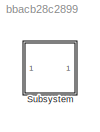
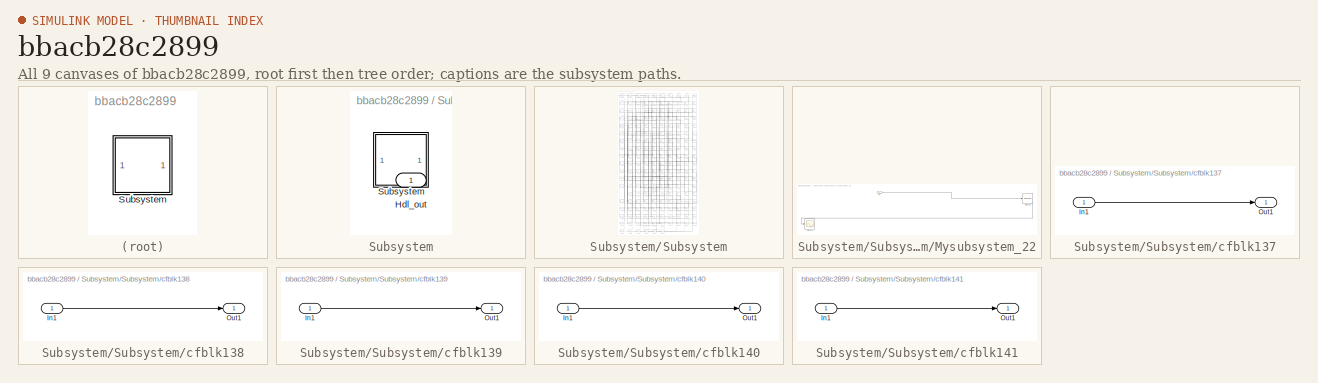
[diagram: thumbnail index - all 9 canvases of the model, root first then tree order]
MODEL slx_bbacb28c2899
KIND model
CONFIG AbsTol = auto
CONFIG EnableMultiTasking = off
CONFIG FixedStep = auto
CONFIG MaxStep = auto
CONFIG MinStep = auto
CONFIG RelTol = 1e-3
CONFIG SampleTimeConstraint = Unconstrained
CONFIG SolverName = VariableStepAuto
CONFIG StartTime = 0.0
CONFIG StopTime = 10.0
BLOCK [SubSystem] Subsystem
BLOCK [Outport] Subsystem/Hdl_out
  OutDataTypeStr = uint8
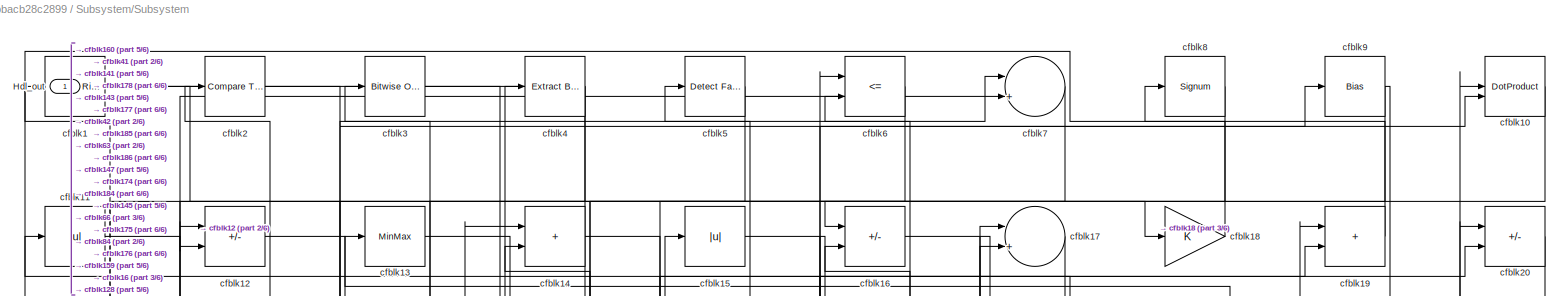
[diagram: Subsystem/Subsystem - part 1/6, full width, top band]
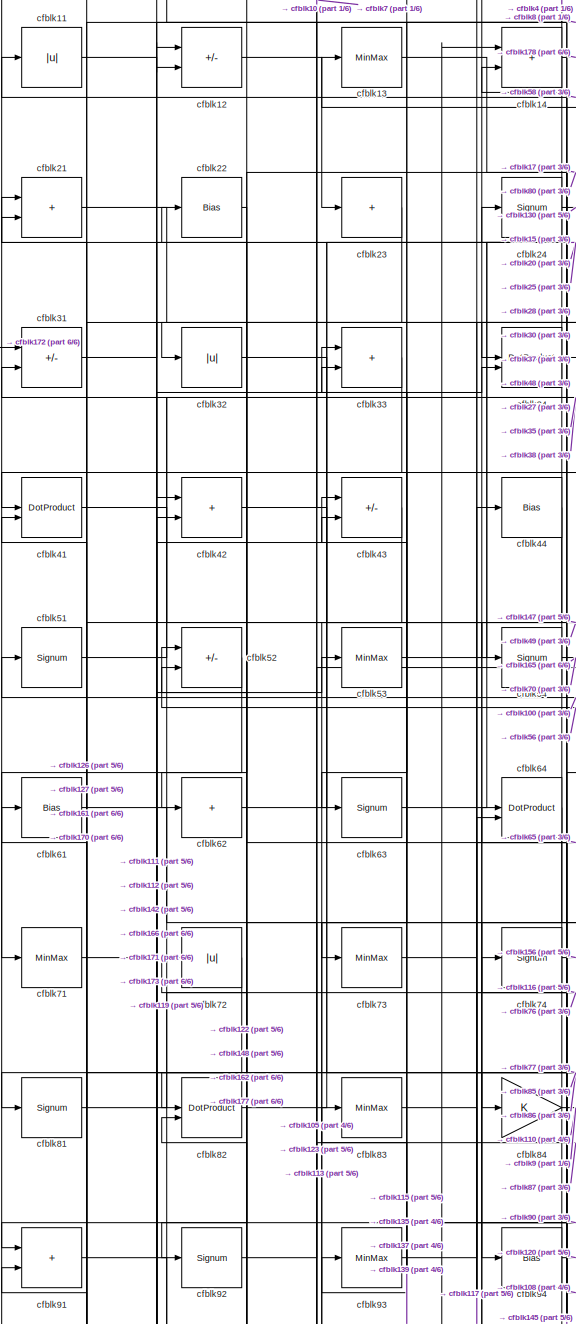
[diagram: Subsystem/Subsystem - part 2/6, top left region]
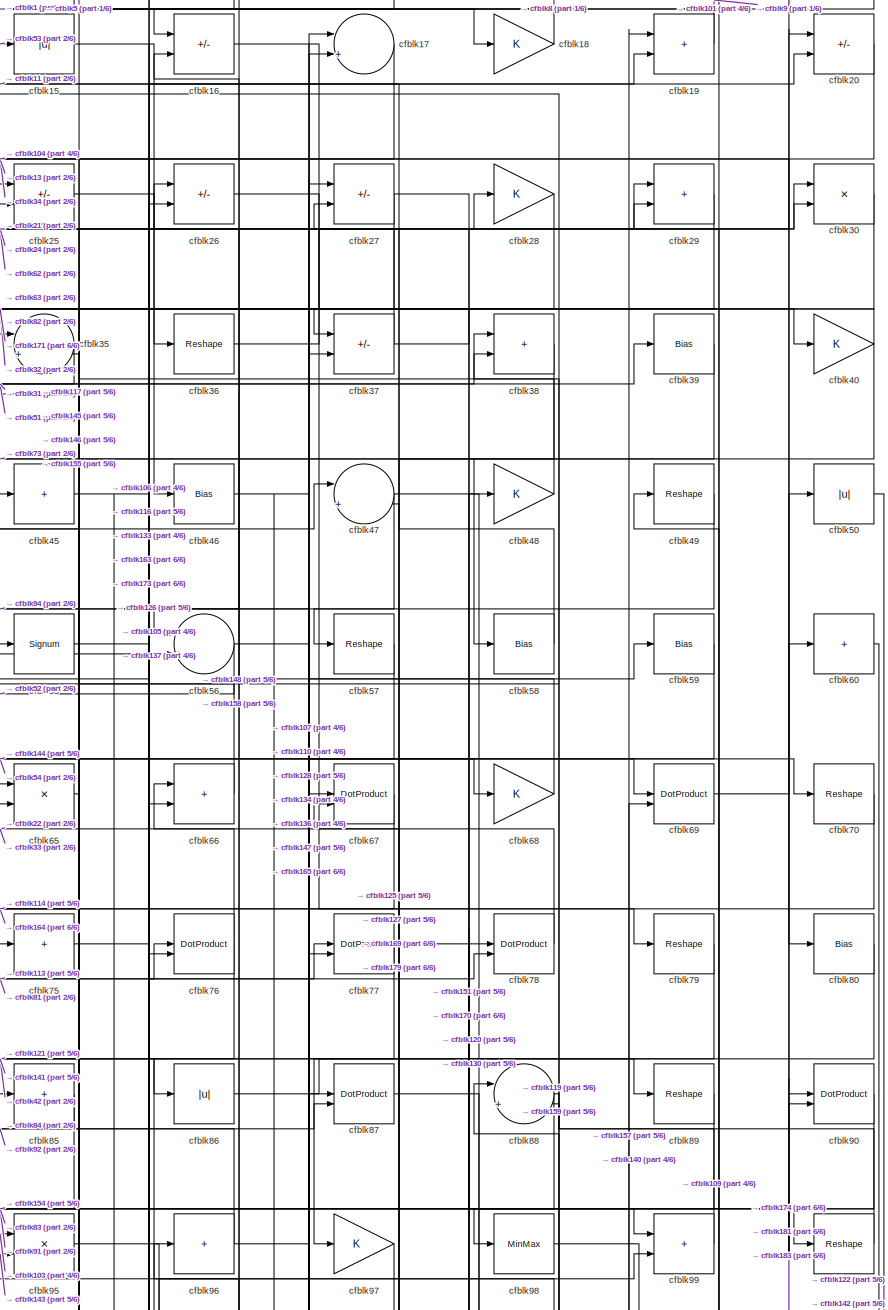
[diagram: Subsystem/Subsystem - part 3/6, top right region]
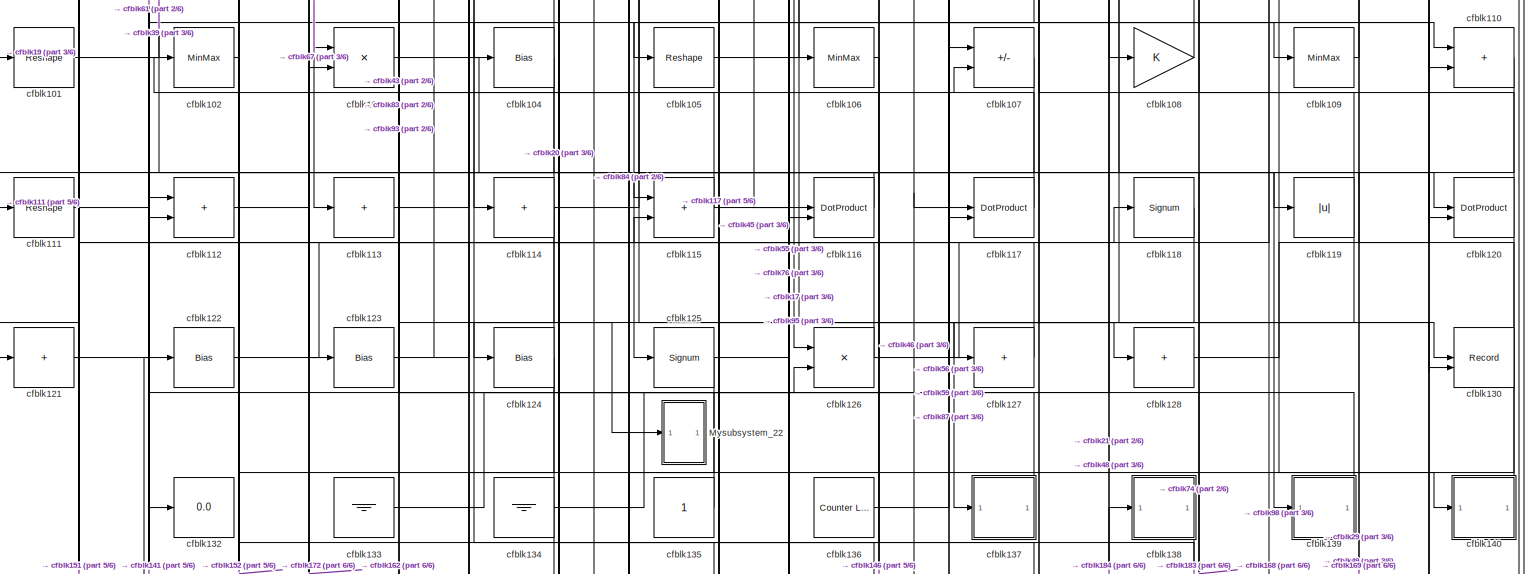
[diagram: Subsystem/Subsystem - part 4/6, full width, middle band]
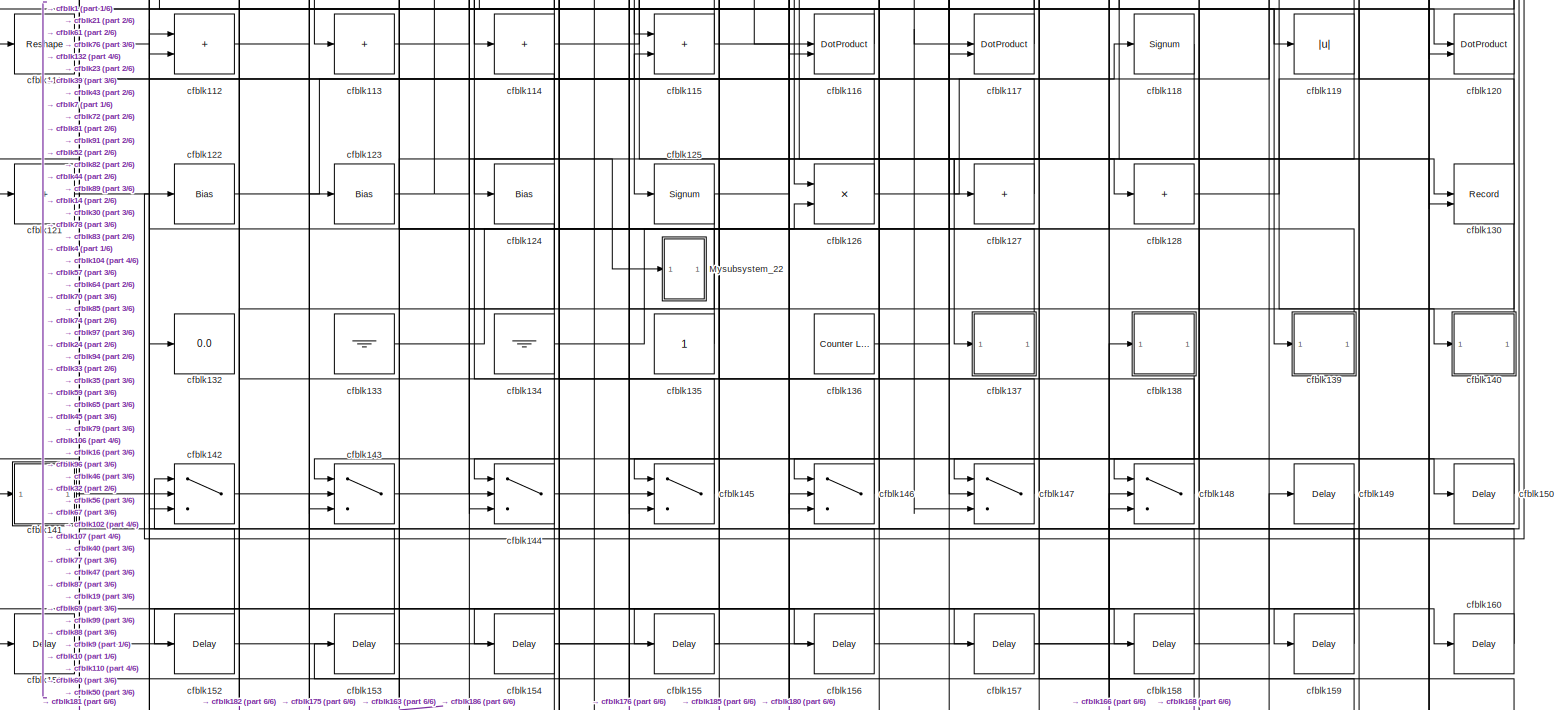
[diagram: Subsystem/Subsystem - part 5/6, full width, bottom band]
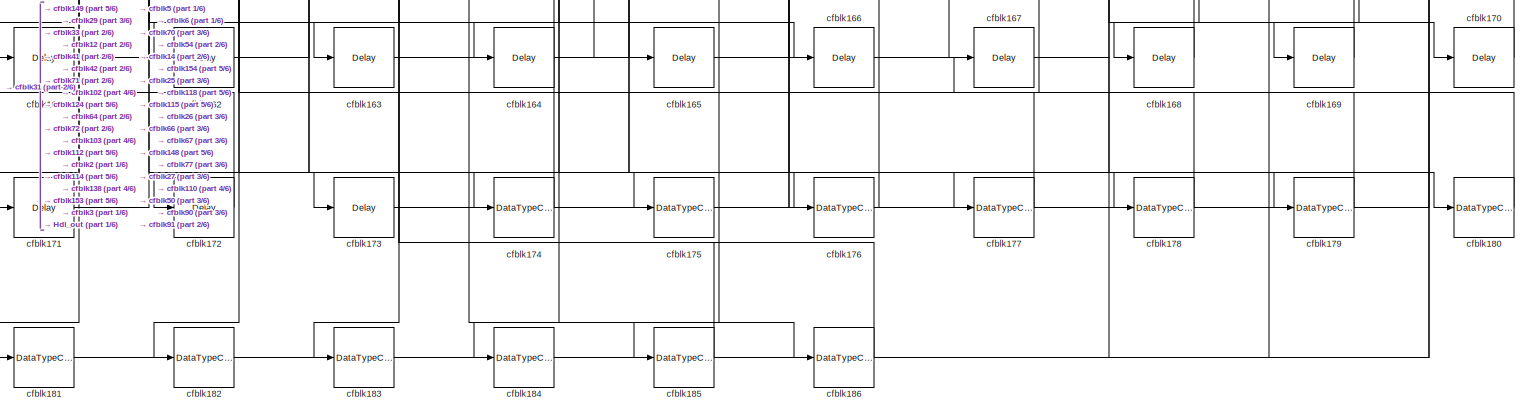
[diagram: Subsystem/Subsystem - part 6/6, full width, bottom band]
BLOCK [SubSystem] Subsystem/Subsystem
BLOCK [Outport] Subsystem/Subsystem/Hdl_out
  OutDataTypeStr = uint8
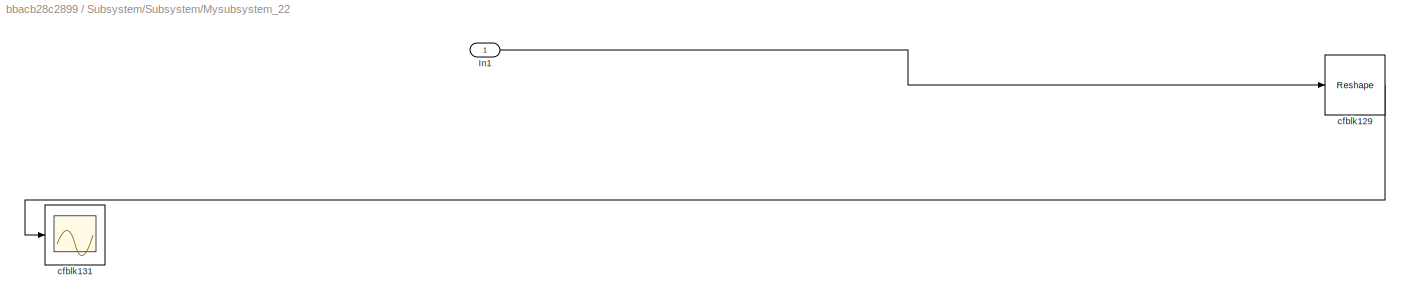
BLOCK [SubSystem] Subsystem/Subsystem/Mysubsystem_22
  RTWFcnName = Mysubsystem_22
  RTWFcnNameOpts = User specified
  RTWFileNameOpts = Use function name
  RTWSystemCode = Reusable function
  TreatAsAtomicUnit = on
BLOCK [Inport] Subsystem/Subsystem/Mysubsystem_22/In1
BLOCK [Reshape] Subsystem/Subsystem/Mysubsystem_22/cfblk129
BLOCK [Scope] Subsystem/Subsystem/Mysubsystem_22/cfblk131
  Floating = off
  NumInputPorts = 1
  ScopeSpecificationString = Simulink.scopes.TimeScopeBlockCfg('CurrentConfiguration', extmgr.ConfigurationSet(extmgr.Configuration('Core','General UI',true),extmgr.Configuration('Core','Source UI',true),extmgr.Configuration('Sources','WiredSimulink',true,'DataLoggingVariableName','ScopeData2','DataLoggingSaveFormat','Array','DataLoggingLimitDataPoints',true,'DataLoggingDecimation','1'),extmgr.Configuration('Visuals','Time Do...<+868ch>
BLOCK [Reference] Subsystem/Subsystem/cfblk1  REF=hdlsllib/Logic and Bit
Operations/Detect Rise
Nonnegative
  SourceBlock = hdlsllib/Logic and Bit\nOperations/Detect Rise\nNonnegative
  SourceType = Detect Rise Nonnegative
BLOCK [DotProduct] Subsystem/Subsystem/cfblk10
  OutDataTypeStr = uint8
BLOCK [Reshape] Subsystem/Subsystem/cfblk100
BLOCK [Reshape] Subsystem/Subsystem/cfblk101
BLOCK [MinMax] Subsystem/Subsystem/cfblk102
  OutDataTypeStr = uint8
BLOCK [Product] Subsystem/Subsystem/cfblk103
  Inputs = */
  OutDataTypeStr = uint8
  RndMeth = Zero
  SaturateOnIntegerOverflow = on
BLOCK [Bias] Subsystem/Subsystem/cfblk104
  Bias = 0.0
  SaturateOnIntegerOverflow = off
BLOCK [Reshape] Subsystem/Subsystem/cfblk105
BLOCK [MinMax] Subsystem/Subsystem/cfblk106
  OutDataTypeStr = uint8
BLOCK [Sum] Subsystem/Subsystem/cfblk107
  IconShape = rectangular
  Inputs = +-
  OutDataTypeStr = uint8
BLOCK [Gain] Subsystem/Subsystem/cfblk108
  OutDataTypeStr = uint8
BLOCK [MinMax] Subsystem/Subsystem/cfblk109
  OutDataTypeStr = uint8
BLOCK [Abs] Subsystem/Subsystem/cfblk11
  OutDataTypeStr = uint8
  SaturateOnIntegerOverflow = off
BLOCK [Sum] Subsystem/Subsystem/cfblk110
  IconShape = rectangular
  OutDataTypeStr = uint8
BLOCK [Reshape] Subsystem/Subsystem/cfblk111
BLOCK [Sum] Subsystem/Subsystem/cfblk112
  IconShape = rectangular
  OutDataTypeStr = uint8
BLOCK [Sum] Subsystem/Subsystem/cfblk113
  IconShape = rectangular
  Inputs = +
  OutDataTypeStr = uint8
BLOCK [Sum] Subsystem/Subsystem/cfblk114
  IconShape = rectangular
  Inputs = +
  OutDataTypeStr = uint8
BLOCK [Sum] Subsystem/Subsystem/cfblk115
  IconShape = rectangular
  OutDataTypeStr = uint8
BLOCK [DotProduct] Subsystem/Subsystem/cfblk116
  OutDataTypeStr = uint8
BLOCK [DotProduct] Subsystem/Subsystem/cfblk117
  OutDataTypeStr = uint8
BLOCK [Signum] Subsystem/Subsystem/cfblk118
BLOCK [Abs] Subsystem/Subsystem/cfblk119
  OutDataTypeStr = uint8
  SaturateOnIntegerOverflow = off
BLOCK [Sum] Subsystem/Subsystem/cfblk12
  IconShape = rectangular
  Inputs = +-
  OutDataTypeStr = uint8
BLOCK [DotProduct] Subsystem/Subsystem/cfblk120
  OutDataTypeStr = uint8
BLOCK [Sum] Subsystem/Subsystem/cfblk121
  IconShape = rectangular
  Inputs = +
  OutDataTypeStr = uint8
BLOCK [Bias] Subsystem/Subsystem/cfblk122
  Bias = 0.0
  SaturateOnIntegerOverflow = off
BLOCK [Bias] Subsystem/Subsystem/cfblk123
  Bias = 0.0
  SaturateOnIntegerOverflow = off
BLOCK [Bias] Subsystem/Subsystem/cfblk124
  Bias = 0.0
  SaturateOnIntegerOverflow = off
BLOCK [Signum] Subsystem/Subsystem/cfblk125
BLOCK [Product] Subsystem/Subsystem/cfblk126
  Inputs = */
  OutDataTypeStr = uint8
  RndMeth = Zero
  SaturateOnIntegerOverflow = on
BLOCK [Sum] Subsystem/Subsystem/cfblk127
  IconShape = rectangular
  Inputs = +
  OutDataTypeStr = uint8
BLOCK [Sum] Subsystem/Subsystem/cfblk128
  IconShape = rectangular
  Inputs = +
  OutDataTypeStr = uint8
BLOCK [MinMax] Subsystem/Subsystem/cfblk13
  OutDataTypeStr = uint8
BLOCK [Record] Subsystem/Subsystem/cfblk130
  CompatibilityTag = XY
  FileSettingsInternal = {"entries":[{"content":{"excelSettings":{"content":{},"type":"Streamout.ExcelSettings"}},"type":"Streamout.FileSettingStorage","uuid":""}],"packageUris":["http:\/\/schema.mathworks.com\/mf0\/streamout_blocks\/R2020a"],"version":"1.0"}
  Layout = [1 1]
  SignalsInternal = {"entries":[{"content":{"signals":[{"content":{"blockPath":[],"dimensions":[1],"domain":"","lineColor":"#a2142f","plots":[1],"port":1,"signalID":41509,"signalName":"cfblk47"},"type":"RecordBlkView.Signal","uuid":""},{"content":{"blockPath":[],"dimensions":[1],"domain":"","lineColor":"#139fff","plots":[1],"port":2,"signalID":41512,"signalName":"cfblk24"},"type":"RecordBlkView.Signal","uuid":""}]},"...<+142ch>
  VisualizationBindings = {"xyplotplugin":{"info":[{"series":[{"bindingParametersList":[{"parameter":"X-Axis","signalID":41509,"signalName":"cfblk47"},{"parameter":"Y-Axis","signalID":41512,"signalName":"cfblk24"}],"seriesID":1659}],"subplotID":1}]}}
  st = -1
BLOCK [Display] Subsystem/Subsystem/cfblk132
  Decimation = 1
BLOCK [Ground] Subsystem/Subsystem/cfblk133
BLOCK [Ground] Subsystem/Subsystem/cfblk134
BLOCK [Constant] Subsystem/Subsystem/cfblk135
  OutDataTypeStr = uint8
  SampleTime = -1
BLOCK [Reference] Subsystem/Subsystem/cfblk136  REF=hdlsllib/Sources/Counter
Limited
  SourceBlock = hdlsllib/Sources/Counter\nLimited
  SourceType = Counter Limited
BLOCK [SubSystem] Subsystem/Subsystem/cfblk137
  LibrarySourceBlock = hdlsllib/Ports &\nSubsystems/Subsystem
BLOCK [Inport] Subsystem/Subsystem/cfblk137/In1
BLOCK [Outport] Subsystem/Subsystem/cfblk137/Out1
BLOCK [SubSystem] Subsystem/Subsystem/cfblk138
  LibrarySourceBlock = hdlsllib/Ports &\nSubsystems/Subsystem
BLOCK [Inport] Subsystem/Subsystem/cfblk138/In1
BLOCK [Outport] Subsystem/Subsystem/cfblk138/Out1
BLOCK [SubSystem] Subsystem/Subsystem/cfblk139
  LibrarySourceBlock = hdlsllib/Ports &\nSubsystems/Subsystem
BLOCK [Inport] Subsystem/Subsystem/cfblk139/In1
BLOCK [Outport] Subsystem/Subsystem/cfblk139/Out1
BLOCK [Sum] Subsystem/Subsystem/cfblk14
  IconShape = rectangular
  OutDataTypeStr = uint8
BLOCK [SubSystem] Subsystem/Subsystem/cfblk140
  LibrarySourceBlock = hdlsllib/Ports &\nSubsystems/Subsystem
BLOCK [Inport] Subsystem/Subsystem/cfblk140/In1
BLOCK [Outport] Subsystem/Subsystem/cfblk140/Out1
BLOCK [SubSystem] Subsystem/Subsystem/cfblk141
  LibrarySourceBlock = hdlsllib/Ports &\nSubsystems/Subsystem
BLOCK [Inport] Subsystem/Subsystem/cfblk141/In1
BLOCK [Outport] Subsystem/Subsystem/cfblk141/Out1
BLOCK [Switch] Subsystem/Subsystem/cfblk142
  InputSameDT = off
  OutDataTypeStr = uint8
  SaturateOnIntegerOverflow = off
BLOCK [Switch] Subsystem/Subsystem/cfblk143
  InputSameDT = off
  OutDataTypeStr = uint8
  SaturateOnIntegerOverflow = off
BLOCK [Switch] Subsystem/Subsystem/cfblk144
  InputSameDT = off
  OutDataTypeStr = uint8
  SaturateOnIntegerOverflow = off
BLOCK [Switch] Subsystem/Subsystem/cfblk145
  InputSameDT = off
  OutDataTypeStr = uint8
  SaturateOnIntegerOverflow = off
BLOCK [Switch] Subsystem/Subsystem/cfblk146
  InputSameDT = off
  OutDataTypeStr = uint8
  SaturateOnIntegerOverflow = off
BLOCK [Switch] Subsystem/Subsystem/cfblk147
  InputSameDT = off
  OutDataTypeStr = uint8
  SaturateOnIntegerOverflow = off
BLOCK [Switch] Subsystem/Subsystem/cfblk148
  InputSameDT = off
  OutDataTypeStr = uint8
  SaturateOnIntegerOverflow = off
BLOCK [Delay] Subsystem/Subsystem/cfblk149
  InputPortMap = u0
  SampleTime = 1
BLOCK [Abs] Subsystem/Subsystem/cfblk15
  OutDataTypeStr = uint8
  SaturateOnIntegerOverflow = off
BLOCK [Delay] Subsystem/Subsystem/cfblk150
  InputPortMap = u0
  SampleTime = 1
BLOCK [Delay] Subsystem/Subsystem/cfblk151
  InputPortMap = u0
  SampleTime = 1
BLOCK [Delay] Subsystem/Subsystem/cfblk152
  InputPortMap = u0
  SampleTime = 1
BLOCK [Delay] Subsystem/Subsystem/cfblk153
  InputPortMap = u0
  SampleTime = 1
BLOCK [Delay] Subsystem/Subsystem/cfblk154
  InputPortMap = u0
  SampleTime = 1
BLOCK [Delay] Subsystem/Subsystem/cfblk155
  InputPortMap = u0
  SampleTime = 1
BLOCK [Delay] Subsystem/Subsystem/cfblk156
  InputPortMap = u0
  SampleTime = 1
BLOCK [Delay] Subsystem/Subsystem/cfblk157
  InputPortMap = u0
  SampleTime = 1
BLOCK [Delay] Subsystem/Subsystem/cfblk158
  InputPortMap = u0
  SampleTime = 1
BLOCK [Delay] Subsystem/Subsystem/cfblk159
  InputPortMap = u0
  SampleTime = 1
BLOCK [Sum] Subsystem/Subsystem/cfblk16
  IconShape = rectangular
  Inputs = +-
  OutDataTypeStr = uint8
BLOCK [Delay] Subsystem/Subsystem/cfblk160
  InputPortMap = u0
  SampleTime = 1
BLOCK [Delay] Subsystem/Subsystem/cfblk161
  InputPortMap = u0
  SampleTime = 1
BLOCK [Delay] Subsystem/Subsystem/cfblk162
  InputPortMap = u0
  SampleTime = 1
BLOCK [Delay] Subsystem/Subsystem/cfblk163
  InputPortMap = u0
  SampleTime = 1
BLOCK [Delay] Subsystem/Subsystem/cfblk164
  InputPortMap = u0
  SampleTime = 1
BLOCK [Delay] Subsystem/Subsystem/cfblk165
  InputPortMap = u0
  SampleTime = 1
BLOCK [Delay] Subsystem/Subsystem/cfblk166
  InputPortMap = u0
  SampleTime = 1
BLOCK [Delay] Subsystem/Subsystem/cfblk167
  InputPortMap = u0
  SampleTime = 1
BLOCK [Delay] Subsystem/Subsystem/cfblk168
  InputPortMap = u0
  SampleTime = 1
BLOCK [Delay] Subsystem/Subsystem/cfblk169
  InputPortMap = u0
  SampleTime = 1
BLOCK [Sum] Subsystem/Subsystem/cfblk17
  Inputs = |++
  OutDataTypeStr = uint8
BLOCK [Delay] Subsystem/Subsystem/cfblk170
  InputPortMap = u0
  SampleTime = 1
BLOCK [Delay] Subsystem/Subsystem/cfblk171
  InputPortMap = u0
  SampleTime = 1
BLOCK [Delay] Subsystem/Subsystem/cfblk172
  InputPortMap = u0
  SampleTime = 1
BLOCK [Delay] Subsystem/Subsystem/cfblk173
  InputPortMap = u0
  SampleTime = 1
BLOCK [DataTypeConversion] Subsystem/Subsystem/cfblk174
  OutDataTypeStr = uint8
  RndMeth = Floor
  SaturateOnIntegerOverflow = off
BLOCK [DataTypeConversion] Subsystem/Subsystem/cfblk175
  OutDataTypeStr = uint8
  RndMeth = Floor
  SaturateOnIntegerOverflow = off
BLOCK [DataTypeConversion] Subsystem/Subsystem/cfblk176
  OutDataTypeStr = uint8
  RndMeth = Floor
  SaturateOnIntegerOverflow = off
BLOCK [DataTypeConversion] Subsystem/Subsystem/cfblk177
  OutDataTypeStr = uint8
  RndMeth = Floor
  SaturateOnIntegerOverflow = off
BLOCK [DataTypeConversion] Subsystem/Subsystem/cfblk178
  OutDataTypeStr = uint8
  RndMeth = Floor
  SaturateOnIntegerOverflow = off
BLOCK [DataTypeConversion] Subsystem/Subsystem/cfblk179
  OutDataTypeStr = uint8
  RndMeth = Floor
  SaturateOnIntegerOverflow = off
BLOCK [Gain] Subsystem/Subsystem/cfblk18
  OutDataTypeStr = uint8
BLOCK [DataTypeConversion] Subsystem/Subsystem/cfblk180
  OutDataTypeStr = uint8
  RndMeth = Floor
  SaturateOnIntegerOverflow = off
BLOCK [DataTypeConversion] Subsystem/Subsystem/cfblk181
  OutDataTypeStr = uint8
  RndMeth = Floor
  SaturateOnIntegerOverflow = off
BLOCK [DataTypeConversion] Subsystem/Subsystem/cfblk182
  OutDataTypeStr = uint8
  RndMeth = Floor
  SaturateOnIntegerOverflow = off
BLOCK [DataTypeConversion] Subsystem/Subsystem/cfblk183
  OutDataTypeStr = uint8
  RndMeth = Floor
  SaturateOnIntegerOverflow = off
BLOCK [DataTypeConversion] Subsystem/Subsystem/cfblk184
  OutDataTypeStr = uint8
  RndMeth = Floor
  SaturateOnIntegerOverflow = off
BLOCK [DataTypeConversion] Subsystem/Subsystem/cfblk185
  OutDataTypeStr = uint8
  RndMeth = Floor
  SaturateOnIntegerOverflow = off
BLOCK [DataTypeConversion] Subsystem/Subsystem/cfblk186
  OutDataTypeStr = uint8
  RndMeth = Floor
  SaturateOnIntegerOverflow = off
BLOCK [Sum] Subsystem/Subsystem/cfblk19
  IconShape = rectangular
  OutDataTypeStr = uint8
BLOCK [Reference] Subsystem/Subsystem/cfblk2  REF=hdlsllib/Logic and Bit
Operations/Compare
To Constant
  SourceBlock = hdlsllib/Logic and Bit\nOperations/Compare\nTo Constant
  SourceType = Compare To Constant
BLOCK [Sum] Subsystem/Subsystem/cfblk20
  IconShape = rectangular
  Inputs = +-
  OutDataTypeStr = uint8
BLOCK [Sum] Subsystem/Subsystem/cfblk21
  IconShape = rectangular
  OutDataTypeStr = uint8
BLOCK [Bias] Subsystem/Subsystem/cfblk22
  Bias = 0.0
  SaturateOnIntegerOverflow = off
BLOCK [Sum] Subsystem/Subsystem/cfblk23
  IconShape = rectangular
  Inputs = +
  OutDataTypeStr = uint8
BLOCK [Signum] Subsystem/Subsystem/cfblk24
BLOCK [Sum] Subsystem/Subsystem/cfblk25
  IconShape = rectangular
  Inputs = +-
  OutDataTypeStr = uint8
BLOCK [Sum] Subsystem/Subsystem/cfblk26
  IconShape = rectangular
  Inputs = +-
  OutDataTypeStr = uint8
BLOCK [Sum] Subsystem/Subsystem/cfblk27
  IconShape = rectangular
  Inputs = +-
  OutDataTypeStr = uint8
BLOCK [Gain] Subsystem/Subsystem/cfblk28
  OutDataTypeStr = uint8
BLOCK [Sum] Subsystem/Subsystem/cfblk29
  IconShape = rectangular
  OutDataTypeStr = uint8
BLOCK [Reference] Subsystem/Subsystem/cfblk3  REF=simulink/Logic and Bit
Operations/Bitwise
Operator
  LibrarySourceBlock = hdlsllib/Logic and Bit\nOperations/Bitwise\nOperator
  SourceBlock = simulink/Logic and Bit\nOperations/Bitwise\nOperator
  SourceType = Bitwise Operator
BLOCK [Product] Subsystem/Subsystem/cfblk30
  Inputs = */
  OutDataTypeStr = uint8
  RndMeth = Zero
  SaturateOnIntegerOverflow = on
BLOCK [Sum] Subsystem/Subsystem/cfblk31
  IconShape = rectangular
  Inputs = +-
  OutDataTypeStr = uint8
BLOCK [Abs] Subsystem/Subsystem/cfblk32
  OutDataTypeStr = uint8
  SaturateOnIntegerOverflow = off
BLOCK [Sum] Subsystem/Subsystem/cfblk33
  IconShape = rectangular
  OutDataTypeStr = uint8
BLOCK [DotProduct] Subsystem/Subsystem/cfblk34
  OutDataTypeStr = uint8
BLOCK [Sum] Subsystem/Subsystem/cfblk35
  Inputs = |++
  OutDataTypeStr = uint8
BLOCK [Reshape] Subsystem/Subsystem/cfblk36
BLOCK [Sum] Subsystem/Subsystem/cfblk37
  IconShape = rectangular
  Inputs = +-
  OutDataTypeStr = uint8
BLOCK [Sum] Subsystem/Subsystem/cfblk38
  IconShape = rectangular
  OutDataTypeStr = uint8
BLOCK [Bias] Subsystem/Subsystem/cfblk39
  Bias = 0.0
  SaturateOnIntegerOverflow = off
BLOCK [Reference] Subsystem/Subsystem/cfblk4  REF=simulink/Logic and Bit
Operations/Extract Bits
  LibrarySourceBlock = hdlsllib/Logic and Bit\nOperations/Extract Bits
  SourceBlock = simulink/Logic and Bit\nOperations/Extract Bits
  SourceType = Extract Bits
BLOCK [Gain] Subsystem/Subsystem/cfblk40
  OutDataTypeStr = uint8
BLOCK [DotProduct] Subsystem/Subsystem/cfblk41
  OutDataTypeStr = uint8
BLOCK [Sum] Subsystem/Subsystem/cfblk42
  IconShape = rectangular
  OutDataTypeStr = uint8
BLOCK [Sum] Subsystem/Subsystem/cfblk43
  IconShape = rectangular
  Inputs = +-
  OutDataTypeStr = uint8
BLOCK [Bias] Subsystem/Subsystem/cfblk44
  Bias = 0.0
  SaturateOnIntegerOverflow = off
BLOCK [Sum] Subsystem/Subsystem/cfblk45
  IconShape = rectangular
  Inputs = +
  OutDataTypeStr = uint8
BLOCK [Bias] Subsystem/Subsystem/cfblk46
  Bias = 0.0
  SaturateOnIntegerOverflow = off
BLOCK [Sum] Subsystem/Subsystem/cfblk47
  Inputs = |++
  OutDataTypeStr = uint8
BLOCK [Gain] Subsystem/Subsystem/cfblk48
  OutDataTypeStr = uint8
BLOCK [Reshape] Subsystem/Subsystem/cfblk49
BLOCK [Reference] Subsystem/Subsystem/cfblk5  REF=hdlsllib/Logic and Bit
Operations/Detect Fall
Negative
  SourceBlock = hdlsllib/Logic and Bit\nOperations/Detect Fall\nNegative
  SourceType = Detect Fall Negative
BLOCK [Abs] Subsystem/Subsystem/cfblk50
  OutDataTypeStr = uint8
  SaturateOnIntegerOverflow = off
BLOCK [Signum] Subsystem/Subsystem/cfblk51
BLOCK [Sum] Subsystem/Subsystem/cfblk52
  IconShape = rectangular
  Inputs = +-
  OutDataTypeStr = uint8
BLOCK [MinMax] Subsystem/Subsystem/cfblk53
  OutDataTypeStr = uint8
BLOCK [Signum] Subsystem/Subsystem/cfblk54
BLOCK [Signum] Subsystem/Subsystem/cfblk55
BLOCK [Sum] Subsystem/Subsystem/cfblk56
  Inputs = |++
  OutDataTypeStr = uint8
BLOCK [Reshape] Subsystem/Subsystem/cfblk57
BLOCK [Bias] Subsystem/Subsystem/cfblk58
  Bias = 0.0
  SaturateOnIntegerOverflow = off
BLOCK [Bias] Subsystem/Subsystem/cfblk59
  Bias = 0.0
  SaturateOnIntegerOverflow = off
BLOCK [RelationalOperator] Subsystem/Subsystem/cfblk6
  InputSameDT = off
  Operator = <=
  OutDataTypeStr = boolean
BLOCK [Sum] Subsystem/Subsystem/cfblk60
  IconShape = rectangular
  Inputs = +
  OutDataTypeStr = uint8
BLOCK [Bias] Subsystem/Subsystem/cfblk61
  Bias = 0.0
  SaturateOnIntegerOverflow = off
BLOCK [Sum] Subsystem/Subsystem/cfblk62
  IconShape = rectangular
  Inputs = +
  OutDataTypeStr = uint8
BLOCK [Signum] Subsystem/Subsystem/cfblk63
BLOCK [DotProduct] Subsystem/Subsystem/cfblk64
  OutDataTypeStr = uint8
BLOCK [Product] Subsystem/Subsystem/cfblk65
  Inputs = */
  OutDataTypeStr = uint8
  RndMeth = Zero
  SaturateOnIntegerOverflow = on
BLOCK [Sum] Subsystem/Subsystem/cfblk66
  IconShape = rectangular
  OutDataTypeStr = uint8
BLOCK [DotProduct] Subsystem/Subsystem/cfblk67
  OutDataTypeStr = uint8
BLOCK [Gain] Subsystem/Subsystem/cfblk68
  OutDataTypeStr = uint8
BLOCK [DotProduct] Subsystem/Subsystem/cfblk69
  OutDataTypeStr = uint8
BLOCK [Sum] Subsystem/Subsystem/cfblk7
  Inputs = |++
  OutDataTypeStr = uint8
BLOCK [Reshape] Subsystem/Subsystem/cfblk70
BLOCK [MinMax] Subsystem/Subsystem/cfblk71
  OutDataTypeStr = uint8
BLOCK [Abs] Subsystem/Subsystem/cfblk72
  OutDataTypeStr = uint8
  SaturateOnIntegerOverflow = off
BLOCK [MinMax] Subsystem/Subsystem/cfblk73
  OutDataTypeStr = uint8
BLOCK [Signum] Subsystem/Subsystem/cfblk74
BLOCK [Sum] Subsystem/Subsystem/cfblk75
  IconShape = rectangular
  Inputs = +
  OutDataTypeStr = uint8
BLOCK [DotProduct] Subsystem/Subsystem/cfblk76
  OutDataTypeStr = uint8
BLOCK [DotProduct] Subsystem/Subsystem/cfblk77
  OutDataTypeStr = uint8
BLOCK [DotProduct] Subsystem/Subsystem/cfblk78
  OutDataTypeStr = uint8
BLOCK [Reshape] Subsystem/Subsystem/cfblk79
BLOCK [Signum] Subsystem/Subsystem/cfblk8
BLOCK [Bias] Subsystem/Subsystem/cfblk80
  Bias = 0.0
  SaturateOnIntegerOverflow = off
BLOCK [Signum] Subsystem/Subsystem/cfblk81
BLOCK [DotProduct] Subsystem/Subsystem/cfblk82
  OutDataTypeStr = uint8
BLOCK [MinMax] Subsystem/Subsystem/cfblk83
  OutDataTypeStr = uint8
BLOCK [Gain] Subsystem/Subsystem/cfblk84
  OutDataTypeStr = uint8
BLOCK [Sum] Subsystem/Subsystem/cfblk85
  IconShape = rectangular
  Inputs = +
  OutDataTypeStr = uint8
BLOCK [Abs] Subsystem/Subsystem/cfblk86
  OutDataTypeStr = uint8
  SaturateOnIntegerOverflow = off
BLOCK [DotProduct] Subsystem/Subsystem/cfblk87
  OutDataTypeStr = uint8
BLOCK [Sum] Subsystem/Subsystem/cfblk88
  Inputs = |++
  OutDataTypeStr = uint8
BLOCK [Reshape] Subsystem/Subsystem/cfblk89
BLOCK [Bias] Subsystem/Subsystem/cfblk9
  Bias = 0.0
  SaturateOnIntegerOverflow = off
BLOCK [DotProduct] Subsystem/Subsystem/cfblk90
  OutDataTypeStr = uint8
BLOCK [Sum] Subsystem/Subsystem/cfblk91
  IconShape = rectangular
  OutDataTypeStr = uint8
BLOCK [Signum] Subsystem/Subsystem/cfblk92
BLOCK [MinMax] Subsystem/Subsystem/cfblk93
  OutDataTypeStr = uint8
BLOCK [Bias] Subsystem/Subsystem/cfblk94
  Bias = 0.0
  SaturateOnIntegerOverflow = off
BLOCK [Product] Subsystem/Subsystem/cfblk95
  Inputs = */
  OutDataTypeStr = uint8
  RndMeth = Zero
  SaturateOnIntegerOverflow = on
BLOCK [Sum] Subsystem/Subsystem/cfblk96
  IconShape = rectangular
  Inputs = +
  OutDataTypeStr = uint8
BLOCK [Gain] Subsystem/Subsystem/cfblk97
  OutDataTypeStr = uint8
BLOCK [MinMax] Subsystem/Subsystem/cfblk98
  OutDataTypeStr = uint8
BLOCK [Sum] Subsystem/Subsystem/cfblk99
  IconShape = rectangular
  OutDataTypeStr = uint8
LINE Subsystem/Subsystem/Mysubsystem_22/In1:1 -> Subsystem/Subsystem/Mysubsystem_22/cfblk129:1
LINE Subsystem/Subsystem/Mysubsystem_22/cfblk129:1 -> Subsystem/Subsystem/Mysubsystem_22/cfblk131:1
NET Subsystem/Subsystem/cfblk100:1 -> Subsystem/Subsystem/cfblk13:1, Subsystem/Subsystem/cfblk51:1, Subsystem/Subsystem/cfblk98:1
LINE Subsystem/Subsystem/cfblk101:1 -> Subsystem/Subsystem/cfblk39:1
LINE Subsystem/Subsystem/cfblk102:1 -> Subsystem/Subsystem/cfblk172:1
LINE Subsystem/Subsystem/cfblk103:1 -> Subsystem/Subsystem/cfblk139:1
LINE Subsystem/Subsystem/cfblk104:1 -> Subsystem/Subsystem/cfblk151:1
LINE Subsystem/Subsystem/cfblk105:1 -> Subsystem/Subsystem/cfblk17:1
LINE Subsystem/Subsystem/cfblk106:1 -> Subsystem/Subsystem/cfblk146:1
LINE Subsystem/Subsystem/cfblk107:1 -> Subsystem/Subsystem/cfblk152:1
LINE Subsystem/Subsystem/cfblk108:1 -> Subsystem/Subsystem/cfblk74:1
LINE Subsystem/Subsystem/cfblk109:1 -> Subsystem/Subsystem/cfblk49:1
NET Subsystem/Subsystem/cfblk10:1 -> Subsystem/Subsystem/cfblk143:3, Subsystem/Subsystem/cfblk41:1
NET Subsystem/Subsystem/cfblk110:1 -> Subsystem/Subsystem/cfblk111:1, Subsystem/Subsystem/cfblk168:1, Subsystem/Subsystem/cfblk169:1
NET Subsystem/Subsystem/cfblk111:1 -> Subsystem/Subsystem/cfblk160:1, Subsystem/Subsystem/cfblk43:2
LINE Subsystem/Subsystem/cfblk112:1 -> Subsystem/Subsystem/cfblk175:1
LINE Subsystem/Subsystem/cfblk113:1 -> Subsystem/Subsystem/cfblk78:2
NET Subsystem/Subsystem/cfblk114:1 -> Subsystem/Subsystem/cfblk163:1, Subsystem/Subsystem/cfblk47:1
NET Subsystem/Subsystem/cfblk115:1 -> Subsystem/Subsystem/cfblk180:1, Subsystem/Subsystem/cfblk33:2
LINE Subsystem/Subsystem/cfblk116:1 -> Subsystem/Subsystem/cfblk115:1
NET Subsystem/Subsystem/cfblk117:1 -> Subsystem/Subsystem/cfblk102:1, Subsystem/Subsystem/cfblk107:2, Subsystem/Subsystem/cfblk45:1
LINE Subsystem/Subsystem/cfblk118:1 -> Subsystem/Subsystem/cfblk185:1
NET Subsystem/Subsystem/cfblk119:1 -> Subsystem/Subsystem/cfblk124:1, Subsystem/Subsystem/cfblk88:1
LINE Subsystem/Subsystem/cfblk11:1 -> Subsystem/Subsystem/cfblk42:1
NET Subsystem/Subsystem/cfblk120:1 -> Subsystem/Subsystem/cfblk145:3, Subsystem/Subsystem/cfblk47:2
LINE Subsystem/Subsystem/cfblk121:1 -> Subsystem/Subsystem/cfblk126:2
NET Subsystem/Subsystem/cfblk122:1 -> Subsystem/Subsystem/cfblk52:1, Subsystem/Subsystem/cfblk56:2, Subsystem/Subsystem/cfblk67:1
NET Subsystem/Subsystem/cfblk123:1 -> Subsystem/Subsystem/Mysubsystem_22:1, Subsystem/Subsystem/cfblk14:1, Subsystem/Subsystem/cfblk64:2
LINE Subsystem/Subsystem/cfblk124:1 -> Subsystem/Subsystem/cfblk182:1
NET Subsystem/Subsystem/cfblk125:1 -> Subsystem/Subsystem/cfblk144:3, Subsystem/Subsystem/cfblk77:1
NET Subsystem/Subsystem/cfblk126:1 -> Subsystem/Subsystem/cfblk21:2, Subsystem/Subsystem/cfblk69:2, Subsystem/Subsystem/cfblk99:2
LINE Subsystem/Subsystem/cfblk127:1 -> Subsystem/Subsystem/cfblk61:1
LINE Subsystem/Subsystem/cfblk128:1 -> Subsystem/Subsystem/cfblk10:1
LINE Subsystem/Subsystem/cfblk12:1 -> Subsystem/Subsystem/cfblk23:1
NET Subsystem/Subsystem/cfblk133:1 -> Subsystem/Subsystem/cfblk48:1, Subsystem/Subsystem/cfblk76:2
LINE Subsystem/Subsystem/cfblk134:1 -> Subsystem/Subsystem/cfblk87:1
LINE Subsystem/Subsystem/cfblk135:1 -> Subsystem/Subsystem/cfblk43:1
LINE Subsystem/Subsystem/cfblk136:1 -> Subsystem/Subsystem/cfblk59:1
LINE Subsystem/Subsystem/cfblk137/In1:1 -> Subsystem/Subsystem/cfblk137/Out1:1
LINE Subsystem/Subsystem/cfblk137:1 -> Subsystem/Subsystem/cfblk83:1
LINE Subsystem/Subsystem/cfblk138/In1:1 -> Subsystem/Subsystem/cfblk138/Out1:1
LINE Subsystem/Subsystem/cfblk138:1 -> Subsystem/Subsystem/cfblk183:1
LINE Subsystem/Subsystem/cfblk139/In1:1 -> Subsystem/Subsystem/cfblk139/Out1:1
LINE Subsystem/Subsystem/cfblk139:1 -> Subsystem/Subsystem/cfblk93:1
LINE Subsystem/Subsystem/cfblk13:1 -> Subsystem/Subsystem/cfblk80:1
LINE Subsystem/Subsystem/cfblk140/In1:1 -> Subsystem/Subsystem/cfblk140/Out1:1
LINE Subsystem/Subsystem/cfblk140:1 -> Subsystem/Subsystem/cfblk29:1
LINE Subsystem/Subsystem/cfblk141/In1:1 -> Subsystem/Subsystem/cfblk141/Out1:1
NET Subsystem/Subsystem/cfblk141:1 -> Subsystem/Subsystem/cfblk115:2, Subsystem/Subsystem/cfblk132:1, Subsystem/Subsystem/cfblk7:2
NET Subsystem/Subsystem/cfblk142:1 -> Subsystem/Subsystem/cfblk157:1, Subsystem/Subsystem/cfblk158:1
LINE Subsystem/Subsystem/cfblk143:1 -> Subsystem/Subsystem/cfblk118:1
LINE Subsystem/Subsystem/cfblk144:1 -> Subsystem/Subsystem/cfblk150:1
LINE Subsystem/Subsystem/cfblk145:1 -> Subsystem/Subsystem/cfblk64:1
LINE Subsystem/Subsystem/cfblk146:1 -> Subsystem/Subsystem/cfblk35:2
LINE Subsystem/Subsystem/cfblk147:1 -> Subsystem/Subsystem/cfblk4:1
NET Subsystem/Subsystem/cfblk148:1 -> Subsystem/Subsystem/cfblk82:2, Subsystem/Subsystem/cfblk96:1
LINE Subsystem/Subsystem/cfblk149:1 -> Subsystem/Subsystem/cfblk181:1
LINE Subsystem/Subsystem/cfblk14:1 -> Subsystem/Subsystem/cfblk178:1
LINE Subsystem/Subsystem/cfblk150:1 -> Subsystem/Subsystem/cfblk147:1
LINE Subsystem/Subsystem/cfblk151:1 -> Subsystem/Subsystem/cfblk78:1
LINE Subsystem/Subsystem/cfblk152:1 -> Subsystem/Subsystem/cfblk112:1
LINE Subsystem/Subsystem/cfblk153:1 -> Subsystem/Subsystem/cfblk143:2
LINE Subsystem/Subsystem/cfblk154:1 -> Subsystem/Subsystem/cfblk176:1
LINE Subsystem/Subsystem/cfblk155:1 -> Subsystem/Subsystem/cfblk35:1
LINE Subsystem/Subsystem/cfblk156:1 -> Subsystem/Subsystem/cfblk146:2
LINE Subsystem/Subsystem/cfblk157:1 -> Subsystem/Subsystem/cfblk19:1
LINE Subsystem/Subsystem/cfblk158:1 -> Subsystem/Subsystem/cfblk16:2
LINE Subsystem/Subsystem/cfblk159:1 -> Subsystem/Subsystem/cfblk88:2
NET Subsystem/Subsystem/cfblk15:1 -> Subsystem/Subsystem/cfblk36:1, Subsystem/Subsystem/cfblk37:2
LINE Subsystem/Subsystem/cfblk160:1 -> Subsystem/Subsystem/cfblk1:1
LINE Subsystem/Subsystem/cfblk161:1 -> Subsystem/Subsystem/cfblk42:2
LINE Subsystem/Subsystem/cfblk162:1 -> Subsystem/Subsystem/cfblk103:2
LINE Subsystem/Subsystem/cfblk163:1 -> Subsystem/Subsystem/cfblk26:2
LINE Subsystem/Subsystem/cfblk164:1 -> Subsystem/Subsystem/cfblk25:2
LINE Subsystem/Subsystem/cfblk165:1 -> Subsystem/Subsystem/cfblk77:2
LINE Subsystem/Subsystem/cfblk166:1 -> Subsystem/Subsystem/cfblk148:3
LINE Subsystem/Subsystem/cfblk167:1 -> Subsystem/Subsystem/cfblk179:1
LINE Subsystem/Subsystem/cfblk168:1 -> Subsystem/Subsystem/cfblk148:2
LINE Subsystem/Subsystem/cfblk169:1 -> Subsystem/Subsystem/cfblk27:2
NET Subsystem/Subsystem/cfblk16:1 -> Subsystem/Subsystem/cfblk69:1, Subsystem/Subsystem/cfblk79:1
LINE Subsystem/Subsystem/cfblk170:1 -> Subsystem/Subsystem/cfblk91:2
LINE Subsystem/Subsystem/cfblk171:1 -> Subsystem/Subsystem/cfblk12:1
LINE Subsystem/Subsystem/cfblk172:1 -> Subsystem/Subsystem/cfblk31:1
LINE Subsystem/Subsystem/cfblk173:1 -> Subsystem/Subsystem/cfblk66:2
NET Subsystem/Subsystem/cfblk174:1 -> Subsystem/Subsystem/Hdl_out:1, Subsystem/Subsystem/cfblk50:1
LINE Subsystem/Subsystem/cfblk175:1 -> Subsystem/Subsystem/cfblk6:1
LINE Subsystem/Subsystem/cfblk176:1 -> Subsystem/Subsystem/cfblk6:2
LINE Subsystem/Subsystem/cfblk177:1 -> Subsystem/Subsystem/cfblk72:1
LINE Subsystem/Subsystem/cfblk178:1 -> Subsystem/Subsystem/cfblk2:1
LINE Subsystem/Subsystem/cfblk179:1 -> Subsystem/Subsystem/cfblk67:2
NET Subsystem/Subsystem/cfblk17:1 -> Subsystem/Subsystem/cfblk34:1, Subsystem/Subsystem/cfblk65:1
LINE Subsystem/Subsystem/cfblk180:1 -> Subsystem/Subsystem/cfblk167:1
LINE Subsystem/Subsystem/cfblk181:1 -> Subsystem/Subsystem/cfblk90:1
LINE Subsystem/Subsystem/cfblk182:1 -> Subsystem/Subsystem/cfblk149:1
LINE Subsystem/Subsystem/cfblk183:1 -> Subsystem/Subsystem/cfblk90:2
LINE Subsystem/Subsystem/cfblk184:1 -> Subsystem/Subsystem/cfblk138:1
LINE Subsystem/Subsystem/cfblk185:1 -> Subsystem/Subsystem/cfblk3:1
LINE Subsystem/Subsystem/cfblk186:1 -> Subsystem/Subsystem/cfblk153:1
LINE Subsystem/Subsystem/cfblk18:1 -> Subsystem/Subsystem/cfblk8:1
LINE Subsystem/Subsystem/cfblk19:1 -> Subsystem/Subsystem/cfblk101:1
LINE Subsystem/Subsystem/cfblk1:1 -> Subsystem/Subsystem/cfblk18:1
NET Subsystem/Subsystem/cfblk20:1 -> Subsystem/Subsystem/cfblk104:1, Subsystem/Subsystem/cfblk82:1
LINE Subsystem/Subsystem/cfblk21:1 -> Subsystem/Subsystem/cfblk108:1
LINE Subsystem/Subsystem/cfblk22:1 -> Subsystem/Subsystem/cfblk92:1
LINE Subsystem/Subsystem/cfblk23:1 -> Subsystem/Subsystem/cfblk112:2
LINE Subsystem/Subsystem/cfblk24:1 -> Subsystem/Subsystem/cfblk130:2
LINE Subsystem/Subsystem/cfblk25:1 -> Subsystem/Subsystem/cfblk46:1
LINE Subsystem/Subsystem/cfblk26:1 -> Subsystem/Subsystem/cfblk40:1
NET Subsystem/Subsystem/cfblk27:1 -> Subsystem/Subsystem/cfblk32:1, Subsystem/Subsystem/cfblk75:1, Subsystem/Subsystem/cfblk99:1
LINE Subsystem/Subsystem/cfblk28:1 -> Subsystem/Subsystem/cfblk62:1
LINE Subsystem/Subsystem/cfblk29:1 -> Subsystem/Subsystem/cfblk171:1
LINE Subsystem/Subsystem/cfblk2:1 -> Subsystem/Subsystem/cfblk177:1
LINE Subsystem/Subsystem/cfblk30:1 -> Subsystem/Subsystem/cfblk144:2
LINE Subsystem/Subsystem/cfblk31:1 -> Subsystem/Subsystem/cfblk25:1
LINE Subsystem/Subsystem/cfblk32:1 -> Subsystem/Subsystem/cfblk147:2
LINE Subsystem/Subsystem/cfblk33:1 -> Subsystem/Subsystem/cfblk161:1
NET Subsystem/Subsystem/cfblk34:1 -> Subsystem/Subsystem/cfblk14:2, Subsystem/Subsystem/cfblk20:2
LINE Subsystem/Subsystem/cfblk35:1 -> Subsystem/Subsystem/cfblk31:2
LINE Subsystem/Subsystem/cfblk36:1 -> Subsystem/Subsystem/cfblk30:2
NET Subsystem/Subsystem/cfblk37:1 -> Subsystem/Subsystem/cfblk21:1, Subsystem/Subsystem/cfblk29:2
LINE Subsystem/Subsystem/cfblk38:1 -> Subsystem/Subsystem/cfblk73:1
NET Subsystem/Subsystem/cfblk39:1 -> Subsystem/Subsystem/cfblk142:3, Subsystem/Subsystem/cfblk56:1
LINE Subsystem/Subsystem/cfblk3:1 -> Subsystem/Subsystem/cfblk186:1
NET Subsystem/Subsystem/cfblk40:1 -> Subsystem/Subsystem/cfblk127:1, Subsystem/Subsystem/cfblk37:1, Subsystem/Subsystem/cfblk58:1
NET Subsystem/Subsystem/cfblk41:1 -> Subsystem/Subsystem/cfblk166:1, Subsystem/Subsystem/cfblk54:1
NET Subsystem/Subsystem/cfblk42:1 -> Subsystem/Subsystem/cfblk10:2, Subsystem/Subsystem/cfblk7:1, Subsystem/Subsystem/cfblk86:1
LINE Subsystem/Subsystem/cfblk43:1 -> Subsystem/Subsystem/cfblk81:1
LINE Subsystem/Subsystem/cfblk44:1 -> Subsystem/Subsystem/cfblk113:1
NET Subsystem/Subsystem/cfblk45:1 -> Subsystem/Subsystem/cfblk109:1, Subsystem/Subsystem/cfblk116:1
NET Subsystem/Subsystem/cfblk46:1 -> Subsystem/Subsystem/cfblk110:1, Subsystem/Subsystem/cfblk117:1, Subsystem/Subsystem/cfblk147:3, Subsystem/Subsystem/cfblk27:1
NET Subsystem/Subsystem/cfblk47:1 -> Subsystem/Subsystem/cfblk130:1, Subsystem/Subsystem/cfblk57:1
LINE Subsystem/Subsystem/cfblk48:1 -> Subsystem/Subsystem/cfblk24:1
LINE Subsystem/Subsystem/cfblk49:1 -> Subsystem/Subsystem/cfblk94:1
LINE Subsystem/Subsystem/cfblk4:1 -> Subsystem/Subsystem/cfblk63:1
LINE Subsystem/Subsystem/cfblk50:1 -> Subsystem/Subsystem/cfblk122:1
LINE Subsystem/Subsystem/cfblk51:1 -> Subsystem/Subsystem/cfblk38:1
LINE Subsystem/Subsystem/cfblk52:1 -> Subsystem/Subsystem/cfblk71:1
LINE Subsystem/Subsystem/cfblk53:1 -> Subsystem/Subsystem/cfblk15:1
NET Subsystem/Subsystem/cfblk54:1 -> Subsystem/Subsystem/cfblk165:1, Subsystem/Subsystem/cfblk70:1
LINE Subsystem/Subsystem/cfblk55:1 -> Subsystem/Subsystem/cfblk106:1
NET Subsystem/Subsystem/cfblk56:1 -> Subsystem/Subsystem/cfblk107:1, Subsystem/Subsystem/cfblk52:2, Subsystem/Subsystem/cfblk68:1
LINE Subsystem/Subsystem/cfblk57:1 -> Subsystem/Subsystem/cfblk144:1
LINE Subsystem/Subsystem/cfblk58:1 -> Subsystem/Subsystem/cfblk11:1
LINE Subsystem/Subsystem/cfblk59:1 -> Subsystem/Subsystem/cfblk145:1
LINE Subsystem/Subsystem/cfblk5:1 -> Subsystem/Subsystem/cfblk184:1
LINE Subsystem/Subsystem/cfblk60:1 -> Subsystem/Subsystem/cfblk142:1
NET Subsystem/Subsystem/cfblk61:1 -> Subsystem/Subsystem/cfblk105:1, Subsystem/Subsystem/cfblk123:1
LINE Subsystem/Subsystem/cfblk62:1 -> Subsystem/Subsystem/cfblk30:1
LINE Subsystem/Subsystem/cfblk63:1 -> Subsystem/Subsystem/cfblk20:1
LINE Subsystem/Subsystem/cfblk64:1 -> Subsystem/Subsystem/cfblk162:1
LINE Subsystem/Subsystem/cfblk65:1 -> Subsystem/Subsystem/cfblk155:1
LINE Subsystem/Subsystem/cfblk66:1 -> Subsystem/Subsystem/cfblk5:1
NET Subsystem/Subsystem/cfblk67:1 -> Subsystem/Subsystem/cfblk103:1, Subsystem/Subsystem/cfblk95:1
LINE Subsystem/Subsystem/cfblk68:1 -> Subsystem/Subsystem/cfblk26:1
LINE Subsystem/Subsystem/cfblk69:1 -> Subsystem/Subsystem/cfblk60:1
LINE Subsystem/Subsystem/cfblk6:1 -> Subsystem/Subsystem/cfblk174:1
NET Subsystem/Subsystem/cfblk70:1 -> Subsystem/Subsystem/cfblk114:1, Subsystem/Subsystem/cfblk164:1
NET Subsystem/Subsystem/cfblk71:1 -> Subsystem/Subsystem/cfblk173:1, Subsystem/Subsystem/cfblk53:1
LINE Subsystem/Subsystem/cfblk72:1 -> Subsystem/Subsystem/cfblk142:2
NET Subsystem/Subsystem/cfblk73:1 -> Subsystem/Subsystem/cfblk65:2, Subsystem/Subsystem/cfblk85:1
LINE Subsystem/Subsystem/cfblk74:1 -> Subsystem/Subsystem/cfblk156:1
LINE Subsystem/Subsystem/cfblk75:1 -> Subsystem/Subsystem/cfblk19:2
NET Subsystem/Subsystem/cfblk76:1 -> Subsystem/Subsystem/cfblk121:1, Subsystem/Subsystem/cfblk22:1, Subsystem/Subsystem/cfblk33:1
NET Subsystem/Subsystem/cfblk77:1 -> Subsystem/Subsystem/cfblk141:1, Subsystem/Subsystem/cfblk170:1, Subsystem/Subsystem/cfblk84:1
LINE Subsystem/Subsystem/cfblk78:1 -> Subsystem/Subsystem/cfblk66:1
LINE Subsystem/Subsystem/cfblk79:1 -> Subsystem/Subsystem/cfblk126:1
LINE Subsystem/Subsystem/cfblk7:1 -> Subsystem/Subsystem/cfblk145:2
LINE Subsystem/Subsystem/cfblk80:1 -> Subsystem/Subsystem/cfblk97:1
NET Subsystem/Subsystem/cfblk81:1 -> Subsystem/Subsystem/cfblk116:2, Subsystem/Subsystem/cfblk41:2, Subsystem/Subsystem/cfblk76:1
LINE Subsystem/Subsystem/cfblk82:1 -> Subsystem/Subsystem/cfblk28:1
NET Subsystem/Subsystem/cfblk83:1 -> Subsystem/Subsystem/cfblk100:1, Subsystem/Subsystem/cfblk117:2
NET Subsystem/Subsystem/cfblk84:1 -> Subsystem/Subsystem/cfblk110:2, Subsystem/Subsystem/cfblk9:1
LINE Subsystem/Subsystem/cfblk85:1 -> Subsystem/Subsystem/cfblk154:1
LINE Subsystem/Subsystem/cfblk86:1 -> Subsystem/Subsystem/cfblk89:1
LINE Subsystem/Subsystem/cfblk87:1 -> Subsystem/Subsystem/cfblk120:1
NET Subsystem/Subsystem/cfblk88:1 -> Subsystem/Subsystem/cfblk146:3, Subsystem/Subsystem/cfblk148:1
NET Subsystem/Subsystem/cfblk89:1 -> Subsystem/Subsystem/cfblk143:1, Subsystem/Subsystem/cfblk95:2
LINE Subsystem/Subsystem/cfblk8:1 -> Subsystem/Subsystem/cfblk12:2
LINE Subsystem/Subsystem/cfblk90:1 -> Subsystem/Subsystem/cfblk91:1
NET Subsystem/Subsystem/cfblk91:1 -> Subsystem/Subsystem/cfblk119:1, Subsystem/Subsystem/cfblk34:2
LINE Subsystem/Subsystem/cfblk92:1 -> Subsystem/Subsystem/cfblk87:2
LINE Subsystem/Subsystem/cfblk93:1 -> Subsystem/Subsystem/cfblk44:1
LINE Subsystem/Subsystem/cfblk94:1 -> Subsystem/Subsystem/cfblk120:2
LINE Subsystem/Subsystem/cfblk95:1 -> Subsystem/Subsystem/cfblk137:1
NET Subsystem/Subsystem/cfblk96:1 -> Subsystem/Subsystem/cfblk128:1, Subsystem/Subsystem/cfblk17:2, Subsystem/Subsystem/cfblk55:1
LINE Subsystem/Subsystem/cfblk97:1 -> Subsystem/Subsystem/cfblk125:1
LINE Subsystem/Subsystem/cfblk98:1 -> Subsystem/Subsystem/cfblk140:1
LINE Subsystem/Subsystem/cfblk99:1 -> Subsystem/Subsystem/cfblk38:2
NET Subsystem/Subsystem/cfblk9:1 -> Subsystem/Subsystem/cfblk159:1, Subsystem/Subsystem/cfblk16:1
note: NET lines group one-source signal fan-out (src -> all destinations, sorted); 1:1 wires keep LINE
